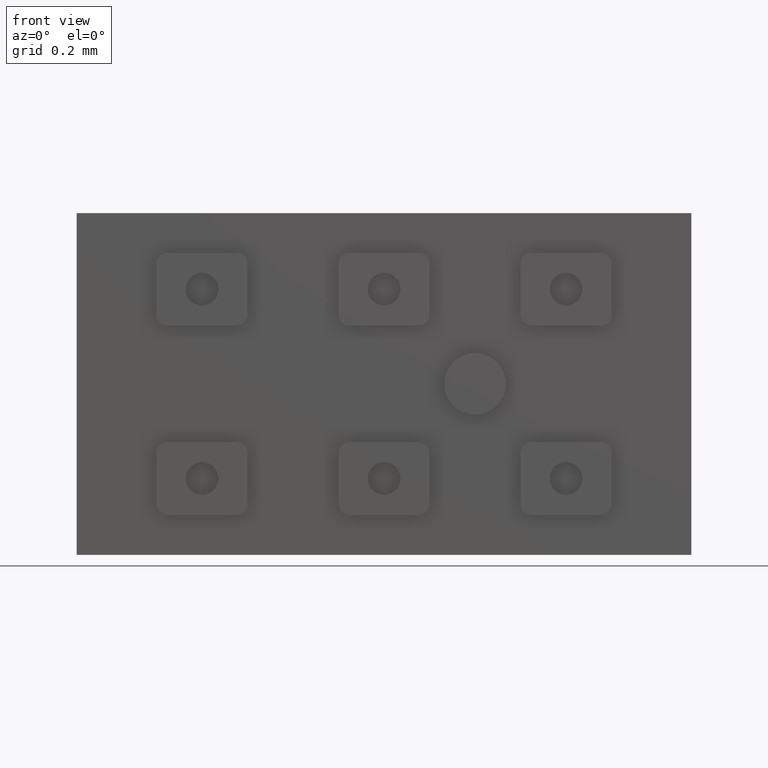
[diagram: clean part render]
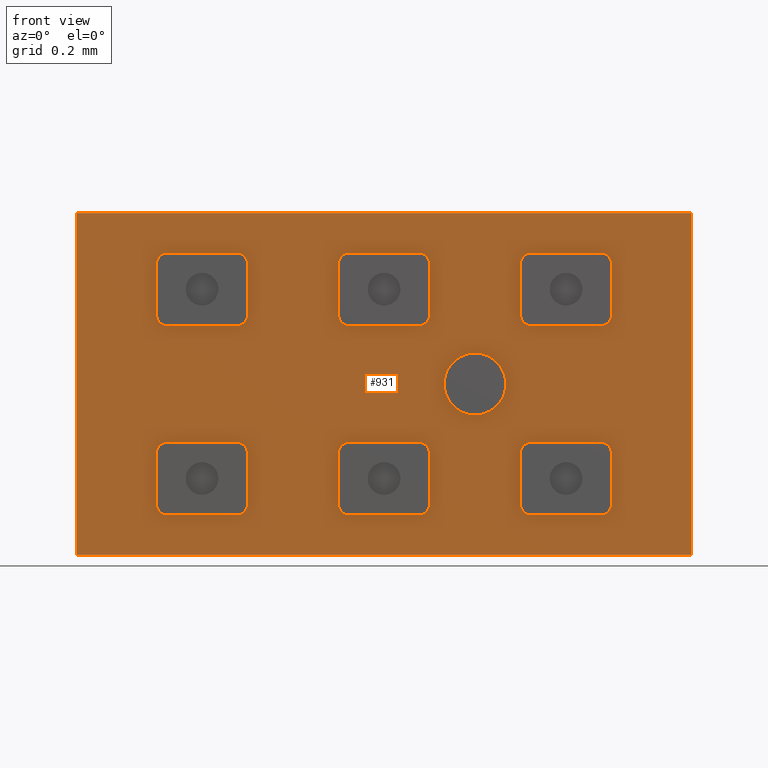
[diagram: same view with one face highlighted and labeled with its STEP entity id]
A machine part, front view. The second image highlights one B-rep face of the part: STEP entity #931.
In plain terms, the highlighted planar face has unit normal (0, 1, 0).
Its self-contained STEP definition (entity closure, byte-faithful):
#1 = LINE ( 'NONE', #1627, #585 ) ;
#18 = ORIENTED_EDGE ( 'NONE', *, *, #1862, .F. ) ;
#19 = ORIENTED_EDGE ( 'NONE', *, *, #986, .T. ) ;
#24 = FACE_BOUND ( 'NONE', #819, .T. ) ;
#26 = DIRECTION ( 'NONE',  ( 1.000000000000000000, 0.000000000000000000, 0.000000000000000000 ) ) ;
#31 = VERTEX_POINT ( 'NONE', #1773 ) ;
#37 = DIRECTION ( 'NONE',  ( 0.000000000000000000, -0.000000000000000000, 1.000000000000000000 ) ) ;
#38 = CIRCLE ( 'NONE', #1903, 0.02999999999999997113 ) ;
#41 = EDGE_CURVE ( 'NONE', #1216, #1025, #293, .T. ) ;
#42 = DIRECTION ( 'NONE',  ( -1.000000000000000000, -0.000000000000000000, -0.000000000000000000 ) ) ;
#49 = CARTESIAN_POINT ( 'NONE',  ( -0.09500000000000002887, -0.2550000000000000044, -0.1599999999999965061 ) ) ;
#57 = LINE ( 'NONE', #2446, #1536 ) ;
#61 = CARTESIAN_POINT ( 'NONE',  ( 0.6250000000000001110, -0.2550000000000000044, 0.3300000000000001266 ) ) ;
#63 = DIRECTION ( 'NONE',  ( -0.000000000000000000, -0.000000000000000000, -1.000000000000000000 ) ) ;
#79 = DIRECTION ( 'NONE',  ( 0.000000000000000000, 1.000000000000000000, -0.000000000000000000 ) ) ;
#80 = DIRECTION ( 'NONE',  ( 0.000000000000000000, 0.000000000000000000, 1.000000000000000000 ) ) ;
#87 = CARTESIAN_POINT ( 'NONE',  ( 0.1250000000000000555, -0.2550000000000000044, 0.1900000000000035272 ) ) ;
#89 = VECTOR ( 'NONE', #1316, 1000.000000000000000 ) ;
#104 = DIRECTION ( 'NONE',  ( 0.000000000000000000, 0.000000000000000000, 1.000000000000000000 ) ) ;
#130 = EDGE_CURVE ( 'NONE', #1229, #31, #57, .T. ) ;
#139 = VERTEX_POINT ( 'NONE', #878 ) ;
#142 = CARTESIAN_POINT ( 'NONE',  ( -0.1250000000000000000, -0.2550000000000000044, 0.1900000000000035272 ) ) ;
#151 = AXIS2_PLACEMENT_3D ( 'NONE', #1408, #2207, #37 ) ;
#156 = EDGE_CURVE ( 'NONE', #2218, #1802, #1869, .T. ) ;
#168 = CIRCLE ( 'NONE', #1798, 0.03000000000000002318 ) ;
#175 = VERTEX_POINT ( 'NONE', #2434 ) ;
#176 = CARTESIAN_POINT ( 'NONE',  ( 0.1250000000000000555, -0.2550000000000000044, -0.3299999999999965183 ) ) ;
#183 = LINE ( 'NONE', #589, #447 ) ;
#184 = DIRECTION ( 'NONE',  ( 0.000000000000000000, 0.000000000000000000, -1.000000000000000000 ) ) ;
#201 = LINE ( 'NONE', #800, #870 ) ;
#204 = VECTOR ( 'NONE', #1933, 1000.000000000000000 ) ;
#205 = ORIENTED_EDGE ( 'NONE', *, *, #1050, .T. ) ;
#226 = DIRECTION ( 'NONE',  ( 0.000000000000000000, 1.000000000000000000, -0.000000000000000000 ) ) ;
#230 = VERTEX_POINT ( 'NONE', #306 ) ;
#235 = FACE_BOUND ( 'NONE', #786, .T. ) ;
#237 = CIRCLE ( 'NONE', #696, 0.03000000000000002318 ) ;
#238 = LINE ( 'NONE', #2402, #1251 ) ;
#243 = AXIS2_PLACEMENT_3D ( 'NONE', #517, #2110, #1711 ) ;
#249 = EDGE_CURVE ( 'NONE', #1588, #1157, #168, .T. ) ;
#250 = DIRECTION ( 'NONE',  ( 0.000000000000000000, 0.000000000000000000, 1.000000000000000000 ) ) ;
#257 = ORIENTED_EDGE ( 'NONE', *, *, #286, .F. ) ;
#260 = EDGE_CURVE ( 'NONE', #869, #1252, #2201, .T. ) ;
#263 = CARTESIAN_POINT ( 'NONE',  ( 0.6250000000000001110, -0.2550000000000000044, 0.1900000000000000577 ) ) ;
#266 = CARTESIAN_POINT ( 'NONE',  ( -0.09500000000000002887, -0.2550000000000000044, 0.3300000000000035683 ) ) ;
#271 = VECTOR ( 'NONE', #26, 1000.000000000000000 ) ;
#273 = EDGE_CURVE ( 'NONE', #1802, #1344, #1917, .T. ) ;
#280 = VECTOR ( 'NONE', #2492, 1000.000000000000000 ) ;
#281 = ORIENTED_EDGE ( 'NONE', *, *, #1914, .T. ) ;
#283 = EDGE_CURVE ( 'NONE', #2017, #2034, #522, .T. ) ;
#285 = VECTOR ( 'NONE', #863, 1000.000000000000000 ) ;
#286 = EDGE_CURVE ( 'NONE', #1785, #1739, #2118, .T. ) ;
#293 = CIRCLE ( 'NONE', #2459, 0.02999999999999997113 ) ;
#296 = ORIENTED_EDGE ( 'NONE', *, *, #2220, .F. ) ;
#297 = LINE ( 'NONE', #681, #2236 ) ;
#300 = EDGE_CURVE ( 'NONE', #2081, #735, #1926, .T. ) ;
#304 = EDGE_LOOP ( 'NONE', ( #2394, #1938, #1819, #1497, #1968, #1636, #205, #2556 ) ) ;
#305 = CARTESIAN_POINT ( 'NONE',  ( 0.4049999999999999711, -0.2550000000000000044, 0.3600000000000000977 ) ) ;
#306 = CARTESIAN_POINT ( 'NONE',  ( -0.6250000000000000000, -0.2550000000000000044, -0.3299999999999930766 ) ) ;
#312 = DIRECTION ( 'NONE',  ( 0.000000000000000000, 1.000000000000000000, -0.000000000000000000 ) ) ;
#318 = AXIS2_PLACEMENT_3D ( 'NONE', #1329, #1537, #2333 ) ;
#321 = CARTESIAN_POINT ( 'NONE',  ( 0.5950000000000000844, -0.2550000000000000044, 0.1900000000000000577 ) ) ;
#337 = CARTESIAN_POINT ( 'NONE',  ( 0.4049999999999999711, -0.2550000000000000044, 0.3600000000000000977 ) ) ;
#343 = ORIENTED_EDGE ( 'NONE', *, *, #909, .T. ) ;
#349 = DIRECTION ( 'NONE',  ( -1.000000000000000000, -0.000000000000000000, -0.000000000000000000 ) ) ;
#353 = DIRECTION ( 'NONE',  ( 1.000000000000000000, 0.000000000000000000, 0.000000000000000000 ) ) ;
#358 = VECTOR ( 'NONE', #458, 1000.000000000000000 ) ;
#362 = EDGE_CURVE ( 'NONE', #2050, #572, #997, .T. ) ;
#410 = AXIS2_PLACEMENT_3D ( 'NONE', #1163, #1548, #1948 ) ;
#422 = VECTOR ( 'NONE', #104, 1000.000000000000000 ) ;
#423 = DIRECTION ( 'NONE',  ( -0.000000000000000000, -1.000000000000000000, -0.000000000000000000 ) ) ;
#433 = DIRECTION ( 'NONE',  ( 0.000000000000000000, 0.000000000000000000, 1.000000000000000000 ) ) ;
#447 = VECTOR ( 'NONE', #1377, 1000.000000000000000 ) ;
#448 = CARTESIAN_POINT ( 'NONE',  ( 0.2500000000000000000, -0.2550000000000000044, 0.000000000000000000 ) ) ;
#457 = ORIENTED_EDGE ( 'NONE', *, *, #555, .T. ) ;
#458 = DIRECTION ( 'NONE',  ( -0.000000000000000000, -0.000000000000000000, 1.000000000000000000 ) ) ;
#465 = CARTESIAN_POINT ( 'NONE',  ( 0.8445000000000000284, -0.2550000000000000044, -0.4695000000000002505 ) ) ;
#467 = DIRECTION ( 'NONE',  ( 0.000000000000000000, 0.000000000000000000, 1.000000000000000000 ) ) ;
#468 = EDGE_CURVE ( 'NONE', #570, #1049, #238, .T. ) ;
#474 = LINE ( 'NONE', #706, #1749 ) ;
#480 = EDGE_CURVE ( 'NONE', #2563, #1216, #1, .T. ) ;
#492 = VERTEX_POINT ( 'NONE', #2373 ) ;
#496 = CARTESIAN_POINT ( 'NONE',  ( -0.5950000000000000844, -0.2550000000000000044, 0.3600000000000070921 ) ) ;
#501 = CARTESIAN_POINT ( 'NONE',  ( 0.2500000000000000000, -0.2550000000000000044, -0.08500000000000003386 ) ) ;
#508 = DIRECTION ( 'NONE',  ( -0.000000000000000000, -0.000000000000000000, -1.000000000000000000 ) ) ;
#512 = EDGE_LOOP ( 'NONE', ( #1131, #1797, #19, #763, #1064, #343, #1188, #1210 ) ) ;
#513 = ORIENTED_EDGE ( 'NONE', *, *, #283, .T. ) ;
#517 = CARTESIAN_POINT ( 'NONE',  ( 0.5950000000000000844, -0.2550000000000000044, -0.1899999999999999467 ) ) ;
#518 = CARTESIAN_POINT ( 'NONE',  ( -0.09500000000000002887, -0.2550000000000000044, 0.3600000000000035394 ) ) ;
#521 = LINE ( 'NONE', #1832, #358 ) ;
#522 = LINE ( 'NONE', #1154, #89 ) ;
#527 = CIRCLE ( 'NONE', #1158, 0.02999999999999997113 ) ;
#533 = CARTESIAN_POINT ( 'NONE',  ( -0.4049999999999999711, -0.2550000000000000044, -0.3599999999999930478 ) ) ;
#536 = EDGE_CURVE ( 'NONE', #2034, #230, #2121, .T. ) ;
#542 = ORIENTED_EDGE ( 'NONE', *, *, #2058, .T. ) ;
#543 = EDGE_CURVE ( 'NONE', #653, #570, #1165, .T. ) ;
#555 = EDGE_CURVE ( 'NONE', #230, #492, #201, .T. ) ;
#569 = EDGE_CURVE ( 'NONE', #175, #1955, #474, .T. ) ;
#570 = VERTEX_POINT ( 'NONE', #1302 ) ;
#572 = VERTEX_POINT ( 'NONE', #1476 ) ;
#573 = CIRCLE ( 'NONE', #2449, 0.03000000000000002318 ) ;
#574 = DIRECTION ( 'NONE',  ( 0.000000000000000000, 0.000000000000000000, 1.000000000000000000 ) ) ;
#579 = CIRCLE ( 'NONE', #948, 0.03000000000000002318 ) ;
#585 = VECTOR ( 'NONE', #1581, 1000.000000000000000 ) ;
#588 = CARTESIAN_POINT ( 'NONE',  ( -0.5950000000000000844, -0.2550000000000000044, 0.3600000000000070921 ) ) ;
#589 = CARTESIAN_POINT ( 'NONE',  ( -0.1250000000000000000, -0.2550000000000000044, -0.3299999999999965183 ) ) ;
#593 = CARTESIAN_POINT ( 'NONE',  ( -0.4049999999999999711, -0.2550000000000000044, 0.1900000000000070521 ) ) ;
#595 = CARTESIAN_POINT ( 'NONE',  ( 0.5950000000000000844, -0.2550000000000000044, -0.3300000000000000155 ) ) ;
#600 = CARTESIAN_POINT ( 'NONE',  ( -0.1250000000000000000, -0.2550000000000000044, -0.3299999999999965183 ) ) ;
#602 = FACE_BOUND ( 'NONE', #2298, .T. ) ;
#616 = ORIENTED_EDGE ( 'NONE', *, *, #273, .T. ) ;
#617 = AXIS2_PLACEMENT_3D ( 'NONE', #1017, #2428, #2180 ) ;
#619 = PLANE ( 'NONE',  #151 ) ;
#623 = CARTESIAN_POINT ( 'NONE',  ( -0.09500000000000002887, -0.2550000000000000044, 0.1900000000000035272 ) ) ;
#624 = EDGE_CURVE ( 'NONE', #1252, #175, #2528, .T. ) ;
#633 = CARTESIAN_POINT ( 'NONE',  ( -0.1250000000000000000, -0.2550000000000000044, 0.1900000000000035272 ) ) ;
#639 = VERTEX_POINT ( 'NONE', #2097 ) ;
#644 = FACE_BOUND ( 'NONE', #304, .T. ) ;
#653 = VERTEX_POINT ( 'NONE', #1652 ) ;
#657 = EDGE_CURVE ( 'NONE', #1759, #2516, #1666, .T. ) ;
#665 = DIRECTION ( 'NONE',  ( 0.000000000000000000, 0.000000000000000000, 1.000000000000000000 ) ) ;
#666 = AXIS2_PLACEMENT_3D ( 'NONE', #448, #1242, #1052 ) ;
#670 = VECTOR ( 'NONE', #1129, 1000.000000000000000 ) ;
#671 = CARTESIAN_POINT ( 'NONE',  ( -0.1250000000000000000, -0.2550000000000000044, -0.1899999999999964773 ) ) ;
#681 = CARTESIAN_POINT ( 'NONE',  ( 0.1250000000000001110, -0.2550000000000000044, 0.1900000000000035272 ) ) ;
#685 = CARTESIAN_POINT ( 'NONE',  ( 0.4049999999999999711, -0.2550000000000000044, -0.3599999999999999867 ) ) ;
#689 = ORIENTED_EDGE ( 'NONE', *, *, #362, .T. ) ;
#693 = AXIS2_PLACEMENT_3D ( 'NONE', #2221, #423, #823 ) ;
#696 = AXIS2_PLACEMENT_3D ( 'NONE', #2092, #312, #2286 ) ;
#704 = CARTESIAN_POINT ( 'NONE',  ( 0.5950000000000000844, -0.2550000000000000044, 0.1600000000000000866 ) ) ;
#706 = CARTESIAN_POINT ( 'NONE',  ( -0.3749999999999998890, -0.2550000000000000044, -0.3299999999999930766 ) ) ;
#712 = EDGE_CURVE ( 'NONE', #2271, #2081, #579, .T. ) ;
#715 = DIRECTION ( 'NONE',  ( 0.000000000000000000, 0.000000000000000000, 1.000000000000000000 ) ) ;
#718 = CARTESIAN_POINT ( 'NONE',  ( 0.6250000000000001110, -0.2550000000000000044, 0.1900000000000000577 ) ) ;
#730 = CARTESIAN_POINT ( 'NONE',  ( -0.3749999999999998890, -0.2550000000000000044, 0.3300000000000071210 ) ) ;
#735 = VERTEX_POINT ( 'NONE', #767 ) ;
#736 = EDGE_CURVE ( 'NONE', #2264, #639, #2116, .T. ) ;
#740 = CARTESIAN_POINT ( 'NONE',  ( -0.6250000000000000000, -0.2550000000000000044, 0.3300000000000071210 ) ) ;
#741 = CARTESIAN_POINT ( 'NONE',  ( -0.5950000000000000844, -0.2550000000000000044, -0.1599999999999930367 ) ) ;
#747 = CARTESIAN_POINT ( 'NONE',  ( 0.8445000000000000284, -0.2550000000000000044, 0.4694999999999998064 ) ) ;
#763 = ORIENTED_EDGE ( 'NONE', *, *, #953, .T. ) ;
#767 = CARTESIAN_POINT ( 'NONE',  ( -0.09500000000000002887, -0.2550000000000000044, 0.1600000000000035560 ) ) ;
#768 = DIRECTION ( 'NONE',  ( 0.000000000000000000, 1.000000000000000000, -0.000000000000000000 ) ) ;
#781 = EDGE_CURVE ( 'NONE', #1420, #139, #1162, .T. ) ;
#782 = CIRCLE ( 'NONE', #410, 0.03000000000000002318 ) ;
#786 = EDGE_LOOP ( 'NONE', ( #296, #2008 ) ) ;
#790 = DIRECTION ( 'NONE',  ( 0.000000000000000000, 1.000000000000000000, 0.000000000000000000 ) ) ;
#792 = ORIENTED_EDGE ( 'NONE', *, *, #468, .T. ) ;
#800 = CARTESIAN_POINT ( 'NONE',  ( -0.6250000000000000000, -0.2550000000000000044, -0.3299999999999930766 ) ) ;
#819 = EDGE_LOOP ( 'NONE', ( #2490, #2376, #1002, #2406, #1338, #1368, #942, #2547 ) ) ;
#823 = DIRECTION ( 'NONE',  ( 0.000000000000000000, 0.000000000000000000, 1.000000000000000000 ) ) ;
#826 = CIRCLE ( 'NONE', #989, 0.02999999999999997113 ) ;
#831 = AXIS2_PLACEMENT_3D ( 'NONE', #2042, #1437, #250 ) ;
#837 = DIRECTION ( 'NONE',  ( 1.000000000000000000, 0.000000000000000000, 0.000000000000000000 ) ) ;
#845 = CARTESIAN_POINT ( 'NONE',  ( -0.09500000000000002887, -0.2550000000000000044, -0.3599999999999964895 ) ) ;
#847 = DIRECTION ( 'NONE',  ( 0.000000000000000000, 1.000000000000000000, 0.000000000000000000 ) ) ;
#850 = CARTESIAN_POINT ( 'NONE',  ( 0.8445000000000000284, -0.2550000000000000044, 0.4694999999999998064 ) ) ;
#863 = DIRECTION ( 'NONE',  ( -1.000000000000000000, 0.000000000000000000, 1.925758743313506929E-16 ) ) ;
#864 = CARTESIAN_POINT ( 'NONE',  ( 0.4049999999999999711, -0.2550000000000000044, -0.1599999999999999756 ) ) ;
#868 = AXIS2_PLACEMENT_3D ( 'NONE', #1896, #79, #2293 ) ;
#869 = VERTEX_POINT ( 'NONE', #741 ) ;
#870 = VECTOR ( 'NONE', #1596, 1000.000000000000000 ) ;
#878 = CARTESIAN_POINT ( 'NONE',  ( 0.5950000000000000844, -0.2550000000000000044, 0.3600000000000001532 ) ) ;
#905 = CARTESIAN_POINT ( 'NONE',  ( 0.09500000000000002887, -0.2550000000000000044, 0.1900000000000035272 ) ) ;
#907 = DIRECTION ( 'NONE',  ( -1.000000000000000000, -0.000000000000000000, -0.000000000000000000 ) ) ;
#909 = EDGE_CURVE ( 'NONE', #1630, #1817, #2197, .T. ) ;
#914 = VERTEX_POINT ( 'NONE', #633 ) ;
#918 = EDGE_CURVE ( 'NONE', #1919, #1229, #1276, .T. ) ;
#924 = DIRECTION ( 'NONE',  ( 0.000000000000000000, 0.000000000000000000, 1.000000000000000000 ) ) ;
#926 = ORIENTED_EDGE ( 'NONE', *, *, #624, .T. ) ;
#931 = ADVANCED_FACE ( 'NONE', ( #1972, #602, #1391, #1203, #644, #24, #235, #2398 ), #619, .F. ) ;
#934 = CARTESIAN_POINT ( 'NONE',  ( 0.6250000000000001110, -0.2550000000000000044, -0.3300000000000000155 ) ) ;
#935 = EDGE_CURVE ( 'NONE', #1829, #2276, #2070, .T. ) ;
#940 = CARTESIAN_POINT ( 'NONE',  ( 0.4049999999999999711, -0.2550000000000000044, -0.1899999999999999467 ) ) ;
#942 = ORIENTED_EDGE ( 'NONE', *, *, #2302, .T. ) ;
#946 = ORIENTED_EDGE ( 'NONE', *, *, #1398, .F. ) ;
#948 = AXIS2_PLACEMENT_3D ( 'NONE', #905, #1750, #574 ) ;
#952 = DIRECTION ( 'NONE',  ( -0.000000000000000000, -0.000000000000000000, -1.000000000000000000 ) ) ;
#953 = EDGE_CURVE ( 'NONE', #1045, #1545, #1076, .T. ) ;
#964 = LINE ( 'NONE', #1137, #1037 ) ;
#974 = VECTOR ( 'NONE', #952, 1000.000000000000000 ) ;
#986 = EDGE_CURVE ( 'NONE', #1336, #1045, #183, .T. ) ;
#989 = AXIS2_PLACEMENT_3D ( 'NONE', #2567, #1560, #2523 ) ;
#992 = LINE ( 'NONE', #2400, #271 ) ;
#993 = CIRCLE ( 'NONE', #2450, 0.02999999999999997113 ) ;
#997 = CIRCLE ( 'NONE', #2418, 0.03000000000000002318 ) ;
#999 = ORIENTED_EDGE ( 'NONE', *, *, #1273, .T. ) ;
#1001 = EDGE_LOOP ( 'NONE', ( #946, #2502, #18, #257 ) ) ;
#1002 = ORIENTED_EDGE ( 'NONE', *, *, #130, .T. ) ;
#1017 = CARTESIAN_POINT ( 'NONE',  ( 0.4049999999999999711, -0.2550000000000000044, 0.1900000000000000577 ) ) ;
#1025 = VERTEX_POINT ( 'NONE', #496 ) ;
#1037 = VECTOR ( 'NONE', #349, 1000.000000000000000 ) ;
#1043 = ORIENTED_EDGE ( 'NONE', *, *, #2455, .T. ) ;
#1045 = VERTEX_POINT ( 'NONE', #671 ) ;
#1049 = VERTEX_POINT ( 'NONE', #2470 ) ;
#1050 = EDGE_CURVE ( 'NONE', #1262, #2271, #297, .T. ) ;
#1052 = DIRECTION ( 'NONE',  ( 0.000000000000000000, 0.000000000000000000, 1.000000000000000000 ) ) ;
#1064 = ORIENTED_EDGE ( 'NONE', *, *, #2559, .T. ) ;
#1072 = AXIS2_PLACEMENT_3D ( 'NONE', #623, #2016, #2444 ) ;
#1076 = CIRCLE ( 'NONE', #1483, 0.02999999999999997113 ) ;
#1086 = VECTOR ( 'NONE', #353, 1000.000000000000000 ) ;
#1090 = DIRECTION ( 'NONE',  ( -0.000000000000000000, -0.000000000000000000, -1.000000000000000000 ) ) ;
#1100 = EDGE_CURVE ( 'NONE', #1464, #1336, #38, .T. ) ;
#1102 = DIRECTION ( 'NONE',  ( 0.000000000000000000, 1.000000000000000000, 0.000000000000000000 ) ) ;
#1104 = EDGE_CURVE ( 'NONE', #1817, #1588, #1662, .T. ) ;
#1112 = LINE ( 'NONE', #1909, #974 ) ;
#1115 = CARTESIAN_POINT ( 'NONE',  ( -0.09500000000000002887, -0.2550000000000000044, -0.3599999999999964895 ) ) ;
#1120 = EDGE_CURVE ( 'NONE', #914, #1716, #1325, .T. ) ;
#1129 = DIRECTION ( 'NONE',  ( -1.000000000000000000, -0.000000000000000000, -0.000000000000000000 ) ) ;
#1131 = ORIENTED_EDGE ( 'NONE', *, *, #1525, .T. ) ;
#1137 = CARTESIAN_POINT ( 'NONE',  ( 0.4049999999999999711, -0.2550000000000000044, 0.1600000000000000866 ) ) ;
#1154 = CARTESIAN_POINT ( 'NONE',  ( -0.5950000000000000844, -0.2550000000000000044, -0.3599999999999930478 ) ) ;
#1157 = VERTEX_POINT ( 'NONE', #1506 ) ;
#1158 = AXIS2_PLACEMENT_3D ( 'NONE', #1837, #1984, #2416 ) ;
#1162 = LINE ( 'NONE', #337, #204 ) ;
#1163 = CARTESIAN_POINT ( 'NONE',  ( -0.4049999999999999711, -0.2550000000000000044, -0.3299999999999930766 ) ) ;
#1164 = DIRECTION ( 'NONE',  ( 0.000000000000000000, 0.000000000000000000, 1.000000000000000000 ) ) ;
#1165 = CIRCLE ( 'NONE', #2001, 0.03000000000000002318 ) ;
#1188 = ORIENTED_EDGE ( 'NONE', *, *, #1104, .T. ) ;
#1193 = DIRECTION ( 'NONE',  ( 0.000000000000000000, 0.000000000000000000, 1.000000000000000000 ) ) ;
#1203 = FACE_BOUND ( 'NONE', #2326, .T. ) ;
#1210 = ORIENTED_EDGE ( 'NONE', *, *, #249, .T. ) ;
#1216 = VERTEX_POINT ( 'NONE', #740 ) ;
#1223 = CARTESIAN_POINT ( 'NONE',  ( 0.3750000000000000000, -0.2550000000000000044, -0.1899999999999999467 ) ) ;
#1227 = VERTEX_POINT ( 'NONE', #704 ) ;
#1229 = VERTEX_POINT ( 'NONE', #1309 ) ;
#1233 = CARTESIAN_POINT ( 'NONE',  ( 0.3750000000000000000, -0.2550000000000000044, -0.3300000000000000155 ) ) ;
#1242 = DIRECTION ( 'NONE',  ( -0.000000000000000000, -1.000000000000000000, -0.000000000000000000 ) ) ;
#1251 = VECTOR ( 'NONE', #42, 1000.000000000000000 ) ;
#1252 = VERTEX_POINT ( 'NONE', #1557 ) ;
#1261 = DIRECTION ( 'NONE',  ( 0.000000000000000000, 1.000000000000000000, 0.000000000000000000 ) ) ;
#1262 = VERTEX_POINT ( 'NONE', #1419 ) ;
#1263 = ORIENTED_EDGE ( 'NONE', *, *, #543, .T. ) ;
#1273 = EDGE_CURVE ( 'NONE', #1025, #2157, #2381, .T. ) ;
#1276 = CIRCLE ( 'NONE', #617, 0.02999999999999997113 ) ;
#1302 = CARTESIAN_POINT ( 'NONE',  ( -0.4049999999999999711, -0.2550000000000000044, 0.1600000000000070810 ) ) ;
#1306 = AXIS2_PLACEMENT_3D ( 'NONE', #1423, #1393, #2223 ) ;
#1309 = CARTESIAN_POINT ( 'NONE',  ( 0.3750000000000000000, -0.2550000000000000044, 0.1900000000000000577 ) ) ;
#1316 = DIRECTION ( 'NONE',  ( -1.000000000000000000, -0.000000000000000000, -0.000000000000000000 ) ) ;
#1319 = VECTOR ( 'NONE', #907, 1000.000000000000000 ) ;
#1325 = LINE ( 'NONE', #142, #280 ) ;
#1329 = CARTESIAN_POINT ( 'NONE',  ( 0.4049999999999999711, -0.2550000000000000044, -0.3300000000000000155 ) ) ;
#1336 = VERTEX_POINT ( 'NONE', #600 ) ;
#1338 = ORIENTED_EDGE ( 'NONE', *, *, #781, .T. ) ;
#1342 = CARTESIAN_POINT ( 'NONE',  ( 0.4049999999999999711, -0.2550000000000000044, -0.3599999999999999867 ) ) ;
#1344 = VERTEX_POINT ( 'NONE', #2395 ) ;
#1368 = ORIENTED_EDGE ( 'NONE', *, *, #2527, .T. ) ;
#1377 = DIRECTION ( 'NONE',  ( 0.000000000000000000, 0.000000000000000000, 1.000000000000000000 ) ) ;
#1390 = CIRCLE ( 'NONE', #1306, 0.03000000000000002318 ) ;
#1391 = FACE_BOUND ( 'NONE', #512, .T. ) ;
#1393 = DIRECTION ( 'NONE',  ( 0.000000000000000000, 1.000000000000000000, -0.000000000000000000 ) ) ;
#1398 = EDGE_CURVE ( 'NONE', #2516, #1785, #521, .T. ) ;
#1408 = CARTESIAN_POINT ( 'NONE',  ( 0.000000000000000000, -0.2550000000000000044, 0.000000000000000000 ) ) ;
#1418 = ORIENTED_EDGE ( 'NONE', *, *, #2026, .T. ) ;
#1419 = CARTESIAN_POINT ( 'NONE',  ( 0.1250000000000001110, -0.2550000000000000044, 0.3300000000000035683 ) ) ;
#1420 = VERTEX_POINT ( 'NONE', #305 ) ;
#1423 = CARTESIAN_POINT ( 'NONE',  ( 0.5950000000000000844, -0.2550000000000000044, 0.3300000000000001266 ) ) ;
#1437 = DIRECTION ( 'NONE',  ( 0.000000000000000000, 1.000000000000000000, 0.000000000000000000 ) ) ;
#1450 = CARTESIAN_POINT ( 'NONE',  ( 0.1250000000000001110, -0.2550000000000000044, -0.3299999999999965183 ) ) ;
#1453 = CIRCLE ( 'NONE', #1665, 0.02999999999999997113 ) ;
#1464 = VERTEX_POINT ( 'NONE', #1115 ) ;
#1476 = CARTESIAN_POINT ( 'NONE',  ( 0.5950000000000000844, -0.2550000000000000044, -0.3599999999999999867 ) ) ;
#1483 = AXIS2_PLACEMENT_3D ( 'NONE', #1575, #2415, #433 ) ;
#1490 = LINE ( 'NONE', #685, #1319 ) ;
#1497 = ORIENTED_EDGE ( 'NONE', *, *, #1932, .T. ) ;
#1499 = DIRECTION ( 'NONE',  ( -0.000000000000000000, -0.000000000000000000, -1.000000000000000000 ) ) ;
#1501 = LINE ( 'NONE', #864, #2514 ) ;
#1506 = CARTESIAN_POINT ( 'NONE',  ( 0.09500000000000002887, -0.2550000000000000044, -0.3599999999999964895 ) ) ;
#1513 = CARTESIAN_POINT ( 'NONE',  ( 0.09500000000000002887, -0.2550000000000000044, -0.3299999999999965183 ) ) ;
#1515 = VERTEX_POINT ( 'NONE', #61 ) ;
#1522 = CARTESIAN_POINT ( 'NONE',  ( -0.3749999999999999445, -0.2550000000000000044, -0.3299999999999930766 ) ) ;
#1525 = EDGE_CURVE ( 'NONE', #1157, #1464, #2295, .T. ) ;
#1528 = VECTOR ( 'NONE', #508, 1000.000000000000000 ) ;
#1536 = VECTOR ( 'NONE', #665, 1000.000000000000000 ) ;
#1537 = DIRECTION ( 'NONE',  ( 0.000000000000000000, 1.000000000000000000, 0.000000000000000000 ) ) ;
#1539 = EDGE_CURVE ( 'NONE', #2157, #1989, #237, .T. ) ;
#1541 = DIRECTION ( 'NONE',  ( 1.000000000000000000, -0.000000000000000000, -1.283839162209004620E-16 ) ) ;
#1545 = VERTEX_POINT ( 'NONE', #49 ) ;
#1548 = DIRECTION ( 'NONE',  ( 0.000000000000000000, 1.000000000000000000, 0.000000000000000000 ) ) ;
#1557 = CARTESIAN_POINT ( 'NONE',  ( -0.4049999999999999711, -0.2550000000000000044, -0.1599999999999929812 ) ) ;
#1560 = DIRECTION ( 'NONE',  ( 0.000000000000000000, 1.000000000000000000, 0.000000000000000000 ) ) ;
#1561 = DIRECTION ( 'NONE',  ( 0.000000000000000000, 1.000000000000000000, 0.000000000000000000 ) ) ;
#1565 = VECTOR ( 'NONE', #1818, 1000.000000000000000 ) ;
#1570 = VECTOR ( 'NONE', #1890, 1000.000000000000000 ) ;
#1575 = CARTESIAN_POINT ( 'NONE',  ( -0.09500000000000002887, -0.2550000000000000044, -0.1899999999999964773 ) ) ;
#1576 = CARTESIAN_POINT ( 'NONE',  ( -0.4049999999999999711, -0.2550000000000000044, 0.3600000000000071476 ) ) ;
#1578 = VECTOR ( 'NONE', #1541, 1000.000000000000000 ) ;
#1581 = DIRECTION ( 'NONE',  ( 0.000000000000000000, 0.000000000000000000, 1.000000000000000000 ) ) ;
#1587 = ORIENTED_EDGE ( 'NONE', *, *, #480, .T. ) ;
#1588 = VERTEX_POINT ( 'NONE', #176 ) ;
#1590 = ORIENTED_EDGE ( 'NONE', *, *, #536, .T. ) ;
#1593 = CARTESIAN_POINT ( 'NONE',  ( -0.8445000000000000284, -0.2550000000000000044, -0.4694999999999999174 ) ) ;
#1596 = DIRECTION ( 'NONE',  ( 0.000000000000000000, 0.000000000000000000, 1.000000000000000000 ) ) ;
#1597 = CARTESIAN_POINT ( 'NONE',  ( -0.1250000000000000000, -0.2550000000000000044, 0.3300000000000035683 ) ) ;
#1599 = ORIENTED_EDGE ( 'NONE', *, *, #1849, .T. ) ;
#1623 = DIRECTION ( 'NONE',  ( 0.000000000000000000, 0.000000000000000000, -1.000000000000000000 ) ) ;
#1627 = CARTESIAN_POINT ( 'NONE',  ( -0.6250000000000000000, -0.2550000000000000044, 0.1900000000000070521 ) ) ;
#1630 = VERTEX_POINT ( 'NONE', #2335 ) ;
#1636 = ORIENTED_EDGE ( 'NONE', *, *, #2024, .T. ) ;
#1642 = VERTEX_POINT ( 'NONE', #1342 ) ;
#1644 = ORIENTED_EDGE ( 'NONE', *, *, #2389, .T. ) ;
#1650 = DIRECTION ( 'NONE',  ( 0.000000000000000000, 0.000000000000000000, 1.000000000000000000 ) ) ;
#1652 = CARTESIAN_POINT ( 'NONE',  ( -0.3749999999999999445, -0.2550000000000000044, 0.1900000000000070521 ) ) ;
#1662 = LINE ( 'NONE', #1450, #2475 ) ;
#1665 = AXIS2_PLACEMENT_3D ( 'NONE', #266, #1261, #80 ) ;
#1666 = LINE ( 'NONE', #465, #285 ) ;
#1671 = ORIENTED_EDGE ( 'NONE', *, *, #736, .T. ) ;
#1677 = CARTESIAN_POINT ( 'NONE',  ( 0.5950000000000000844, -0.2550000000000000044, -0.1599999999999999201 ) ) ;
#1694 = CARTESIAN_POINT ( 'NONE',  ( 0.3750000000000000000, -0.2550000000000000044, -0.3300000000000000155 ) ) ;
#1711 = DIRECTION ( 'NONE',  ( 0.000000000000000000, 0.000000000000000000, -1.000000000000000000 ) ) ;
#1715 = CARTESIAN_POINT ( 'NONE',  ( -0.5950000000000000844, -0.2550000000000000044, -0.1599999999999930367 ) ) ;
#1716 = VERTEX_POINT ( 'NONE', #1597 ) ;
#1717 = ORIENTED_EDGE ( 'NONE', *, *, #1539, .T. ) ;
#1729 = EDGE_LOOP ( 'NONE', ( #1997, #1963, #2466, #616, #1599, #1671, #1043, #689 ) ) ;
#1734 = ORIENTED_EDGE ( 'NONE', *, *, #41, .T. ) ;
#1739 = VERTEX_POINT ( 'NONE', #850 ) ;
#1742 = DIRECTION ( 'NONE',  ( 0.000000000000000000, 1.000000000000000000, 0.000000000000000000 ) ) ;
#1749 = VECTOR ( 'NONE', #1090, 1000.000000000000000 ) ;
#1750 = DIRECTION ( 'NONE',  ( 0.000000000000000000, 1.000000000000000000, 0.000000000000000000 ) ) ;
#1757 = EDGE_CURVE ( 'NONE', #735, #914, #2102, .T. ) ;
#1759 = VERTEX_POINT ( 'NONE', #2027 ) ;
#1762 = ORIENTED_EDGE ( 'NONE', *, *, #569, .T. ) ;
#1766 = CARTESIAN_POINT ( 'NONE',  ( -0.5950000000000000844, -0.2550000000000000044, -0.3599999999999930478 ) ) ;
#1773 = CARTESIAN_POINT ( 'NONE',  ( 0.3750000000000000000, -0.2550000000000000044, 0.3300000000000001266 ) ) ;
#1785 = VERTEX_POINT ( 'NONE', #2212 ) ;
#1797 = ORIENTED_EDGE ( 'NONE', *, *, #1100, .T. ) ;
#1798 = AXIS2_PLACEMENT_3D ( 'NONE', #1513, #1102, #924 ) ;
#1802 = VERTEX_POINT ( 'NONE', #1223 ) ;
#1811 = CARTESIAN_POINT ( 'NONE',  ( -0.6250000000000000000, -0.2550000000000000044, 0.1900000000000070521 ) ) ;
#1817 = VERTEX_POINT ( 'NONE', #2420 ) ;
#1818 = DIRECTION ( 'NONE',  ( 1.000000000000000000, 0.000000000000000000, 0.000000000000000000 ) ) ;
#1819 = ORIENTED_EDGE ( 'NONE', *, *, #1120, .T. ) ;
#1828 = VECTOR ( 'NONE', #2437, 1000.000000000000000 ) ;
#1829 = VERTEX_POINT ( 'NONE', #501 ) ;
#1832 = CARTESIAN_POINT ( 'NONE',  ( -0.8445000000000000284, -0.2550000000000000044, 0.4695000000000000284 ) ) ;
#1837 = CARTESIAN_POINT ( 'NONE',  ( 0.4049999999999999711, -0.2550000000000000044, 0.3300000000000001266 ) ) ;
#1849 = EDGE_CURVE ( 'NONE', #1344, #2264, #1501, .T. ) ;
#1862 = EDGE_CURVE ( 'NONE', #1739, #1759, #2261, .T. ) ;
#1869 = LINE ( 'NONE', #1694, #422 ) ;
#1877 = CIRCLE ( 'NONE', #318, 0.02999999999999997113 ) ;
#1887 = EDGE_CURVE ( 'NONE', #572, #1642, #1490, .T. ) ;
#1890 = DIRECTION ( 'NONE',  ( 0.000000000000000000, 0.000000000000000000, -1.000000000000000000 ) ) ;
#1896 = CARTESIAN_POINT ( 'NONE',  ( -0.4049999999999999711, -0.2550000000000000044, -0.1899999999999930078 ) ) ;
#1903 = AXIS2_PLACEMENT_3D ( 'NONE', #2232, #847, #1650 ) ;
#1909 = CARTESIAN_POINT ( 'NONE',  ( 0.6250000000000001110, -0.2550000000000000044, -0.3300000000000000155 ) ) ;
#1914 = EDGE_CURVE ( 'NONE', #1989, #653, #2269, .T. ) ;
#1917 = CIRCLE ( 'NONE', #2288, 0.02999999999999997113 ) ;
#1919 = VERTEX_POINT ( 'NONE', #2056 ) ;
#1926 = LINE ( 'NONE', #2488, #670 ) ;
#1932 = EDGE_CURVE ( 'NONE', #1716, #1942, #1453, .T. ) ;
#1933 = DIRECTION ( 'NONE',  ( 1.000000000000000000, 0.000000000000000000, 0.000000000000000000 ) ) ;
#1938 = ORIENTED_EDGE ( 'NONE', *, *, #1757, .T. ) ;
#1942 = VERTEX_POINT ( 'NONE', #518 ) ;
#1948 = DIRECTION ( 'NONE',  ( 0.000000000000000000, 0.000000000000000000, 1.000000000000000000 ) ) ;
#1955 = VERTEX_POINT ( 'NONE', #1522 ) ;
#1963 = ORIENTED_EDGE ( 'NONE', *, *, #2091, .T. ) ;
#1964 = EDGE_CURVE ( 'NONE', #1227, #1919, #964, .T. ) ;
#1968 = ORIENTED_EDGE ( 'NONE', *, *, #2546, .T. ) ;
#1972 = FACE_BOUND ( 'NONE', #1729, .T. ) ;
#1973 = CARTESIAN_POINT ( 'NONE',  ( 0.09500000000000002887, -0.2550000000000000044, 0.3300000000000035683 ) ) ;
#1984 = DIRECTION ( 'NONE',  ( 0.000000000000000000, 1.000000000000000000, 0.000000000000000000 ) ) ;
#1986 = AXIS2_PLACEMENT_3D ( 'NONE', #2011, #226, #1623 ) ;
#1989 = VERTEX_POINT ( 'NONE', #730 ) ;
#1997 = ORIENTED_EDGE ( 'NONE', *, *, #1887, .T. ) ;
#2001 = AXIS2_PLACEMENT_3D ( 'NONE', #593, #2182, #1193 ) ;
#2008 = ORIENTED_EDGE ( 'NONE', *, *, #935, .F. ) ;
#2011 = CARTESIAN_POINT ( 'NONE',  ( 0.09500000000000002887, -0.2550000000000000044, -0.1899999999999964773 ) ) ;
#2013 = LINE ( 'NONE', #2386, #2063 ) ;
#2016 = DIRECTION ( 'NONE',  ( 0.000000000000000000, 1.000000000000000000, 0.000000000000000000 ) ) ;
#2017 = VERTEX_POINT ( 'NONE', #533 ) ;
#2024 = EDGE_CURVE ( 'NONE', #2433, #1262, #573, .T. ) ;
#2026 = EDGE_CURVE ( 'NONE', #1955, #2017, #782, .T. ) ;
#2027 = CARTESIAN_POINT ( 'NONE',  ( 0.8445000000000000284, -0.2550000000000000044, -0.4695000000000002505 ) ) ;
#2034 = VERTEX_POINT ( 'NONE', #1766 ) ;
#2038 = AXIS2_PLACEMENT_3D ( 'NONE', #321, #2493, #715 ) ;
#2042 = CARTESIAN_POINT ( 'NONE',  ( -0.5950000000000000844, -0.2550000000000000044, -0.3299999999999930766 ) ) ;
#2050 = VERTEX_POINT ( 'NONE', #934 ) ;
#2056 = CARTESIAN_POINT ( 'NONE',  ( 0.4049999999999999711, -0.2550000000000000044, 0.1600000000000000866 ) ) ;
#2058 = EDGE_CURVE ( 'NONE', #492, #869, #826, .T. ) ;
#2063 = VECTOR ( 'NONE', #837, 1000.000000000000000 ) ;
#2070 = CIRCLE ( 'NONE', #693, 0.08500000000000003386 ) ;
#2079 = DIRECTION ( 'NONE',  ( 1.000000000000000000, 0.000000000000000000, 0.000000000000000000 ) ) ;
#2081 = VERTEX_POINT ( 'NONE', #2509 ) ;
#2087 = LINE ( 'NONE', #263, #2244 ) ;
#2091 = EDGE_CURVE ( 'NONE', #1642, #2218, #1877, .T. ) ;
#2092 = CARTESIAN_POINT ( 'NONE',  ( -0.4049999999999999711, -0.2550000000000000044, 0.3300000000000071210 ) ) ;
#2097 = CARTESIAN_POINT ( 'NONE',  ( 0.6250000000000001110, -0.2550000000000000044, -0.1899999999999999467 ) ) ;
#2101 = DIRECTION ( 'NONE',  ( 0.000000000000000000, 0.000000000000000000, 1.000000000000000000 ) ) ;
#2102 = CIRCLE ( 'NONE', #1072, 0.02999999999999997113 ) ;
#2110 = DIRECTION ( 'NONE',  ( 0.000000000000000000, 1.000000000000000000, -0.000000000000000000 ) ) ;
#2112 = CARTESIAN_POINT ( 'NONE',  ( -0.5950000000000000844, -0.2550000000000000044, 0.1900000000000070521 ) ) ;
#2115 = CIRCLE ( 'NONE', #2038, 0.03000000000000002318 ) ;
#2116 = CIRCLE ( 'NONE', #243, 0.03000000000000002318 ) ;
#2118 = LINE ( 'NONE', #747, #1578 ) ;
#2121 = CIRCLE ( 'NONE', #831, 0.02999999999999997113 ) ;
#2136 = EDGE_CURVE ( 'NONE', #31, #1420, #527, .T. ) ;
#2157 = VERTEX_POINT ( 'NONE', #1576 ) ;
#2180 = DIRECTION ( 'NONE',  ( 0.000000000000000000, 0.000000000000000000, 1.000000000000000000 ) ) ;
#2182 = DIRECTION ( 'NONE',  ( 0.000000000000000000, 1.000000000000000000, 0.000000000000000000 ) ) ;
#2197 = CIRCLE ( 'NONE', #1986, 0.03000000000000002318 ) ;
#2201 = LINE ( 'NONE', #1715, #1086 ) ;
#2207 = DIRECTION ( 'NONE',  ( 0.000000000000000000, 1.000000000000000000, 0.000000000000000000 ) ) ;
#2212 = CARTESIAN_POINT ( 'NONE',  ( -0.8445000000000000284, -0.2550000000000000044, 0.4695000000000000284 ) ) ;
#2214 = CARTESIAN_POINT ( 'NONE',  ( -0.5950000000000000844, -0.2550000000000000044, 0.3300000000000071210 ) ) ;
#2218 = VERTEX_POINT ( 'NONE', #1233 ) ;
#2220 = EDGE_CURVE ( 'NONE', #2276, #1829, #2526, .T. ) ;
#2221 = CARTESIAN_POINT ( 'NONE',  ( 0.2500000000000000000, -0.2550000000000000044, 0.000000000000000000 ) ) ;
#2223 = DIRECTION ( 'NONE',  ( 0.000000000000000000, 0.000000000000000000, -1.000000000000000000 ) ) ;
#2232 = CARTESIAN_POINT ( 'NONE',  ( -0.09500000000000002887, -0.2550000000000000044, -0.3299999999999965183 ) ) ;
#2236 = VECTOR ( 'NONE', #63, 1000.000000000000000 ) ;
#2244 = VECTOR ( 'NONE', #1499, 1000.000000000000000 ) ;
#2256 = ORIENTED_EDGE ( 'NONE', *, *, #260, .T. ) ;
#2261 = LINE ( 'NONE', #2496, #1570 ) ;
#2264 = VERTEX_POINT ( 'NONE', #1677 ) ;
#2265 = DIRECTION ( 'NONE',  ( -0.000000000000000000, -0.000000000000000000, -1.000000000000000000 ) ) ;
#2269 = LINE ( 'NONE', #2473, #1528 ) ;
#2271 = VERTEX_POINT ( 'NONE', #87 ) ;
#2276 = VERTEX_POINT ( 'NONE', #2471 ) ;
#2286 = DIRECTION ( 'NONE',  ( 0.000000000000000000, 0.000000000000000000, -1.000000000000000000 ) ) ;
#2288 = AXIS2_PLACEMENT_3D ( 'NONE', #940, #1742, #2101 ) ;
#2293 = DIRECTION ( 'NONE',  ( 0.000000000000000000, 0.000000000000000000, -1.000000000000000000 ) ) ;
#2295 = LINE ( 'NONE', #845, #1828 ) ;
#2298 = EDGE_LOOP ( 'NONE', ( #513, #1590, #457, #542, #2256, #926, #1762, #1418 ) ) ;
#2302 = EDGE_CURVE ( 'NONE', #1515, #2422, #2087, .T. ) ;
#2318 = CARTESIAN_POINT ( 'NONE',  ( 0.09500000000000002887, -0.2550000000000000044, 0.3600000000000035949 ) ) ;
#2326 = EDGE_LOOP ( 'NONE', ( #792, #1644, #1587, #1734, #999, #1717, #281, #1263 ) ) ;
#2333 = DIRECTION ( 'NONE',  ( 0.000000000000000000, 0.000000000000000000, 1.000000000000000000 ) ) ;
#2335 = CARTESIAN_POINT ( 'NONE',  ( 0.09500000000000002887, -0.2550000000000000044, -0.1599999999999964506 ) ) ;
#2338 = EDGE_CURVE ( 'NONE', #2422, #1227, #2115, .T. ) ;
#2365 = DIRECTION ( 'NONE',  ( 0.000000000000000000, 1.000000000000000000, 0.000000000000000000 ) ) ;
#2373 = CARTESIAN_POINT ( 'NONE',  ( -0.6250000000000000000, -0.2550000000000000044, -0.1899999999999930078 ) ) ;
#2376 = ORIENTED_EDGE ( 'NONE', *, *, #918, .T. ) ;
#2381 = LINE ( 'NONE', #588, #1565 ) ;
#2386 = CARTESIAN_POINT ( 'NONE',  ( -0.09500000000000002887, -0.2550000000000000044, 0.3600000000000035394 ) ) ;
#2389 = EDGE_CURVE ( 'NONE', #1049, #2563, #993, .T. ) ;
#2394 = ORIENTED_EDGE ( 'NONE', *, *, #300, .T. ) ;
#2395 = CARTESIAN_POINT ( 'NONE',  ( 0.4049999999999999711, -0.2550000000000000044, -0.1599999999999999756 ) ) ;
#2398 = FACE_OUTER_BOUND ( 'NONE', #1001, .T. ) ;
#2400 = CARTESIAN_POINT ( 'NONE',  ( -0.09500000000000002887, -0.2550000000000000044, -0.1599999999999965061 ) ) ;
#2402 = CARTESIAN_POINT ( 'NONE',  ( -0.5950000000000000844, -0.2550000000000000044, 0.1600000000000070810 ) ) ;
#2406 = ORIENTED_EDGE ( 'NONE', *, *, #2136, .T. ) ;
#2415 = DIRECTION ( 'NONE',  ( 0.000000000000000000, 1.000000000000000000, 0.000000000000000000 ) ) ;
#2416 = DIRECTION ( 'NONE',  ( 0.000000000000000000, 0.000000000000000000, 1.000000000000000000 ) ) ;
#2418 = AXIS2_PLACEMENT_3D ( 'NONE', #595, #790, #2555 ) ;
#2420 = CARTESIAN_POINT ( 'NONE',  ( 0.1250000000000001110, -0.2550000000000000044, -0.1899999999999964773 ) ) ;
#2422 = VERTEX_POINT ( 'NONE', #718 ) ;
#2428 = DIRECTION ( 'NONE',  ( 0.000000000000000000, 1.000000000000000000, 0.000000000000000000 ) ) ;
#2433 = VERTEX_POINT ( 'NONE', #2318 ) ;
#2434 = CARTESIAN_POINT ( 'NONE',  ( -0.3749999999999998890, -0.2550000000000000044, -0.1899999999999930078 ) ) ;
#2437 = DIRECTION ( 'NONE',  ( -1.000000000000000000, -0.000000000000000000, -0.000000000000000000 ) ) ;
#2444 = DIRECTION ( 'NONE',  ( 0.000000000000000000, 0.000000000000000000, 1.000000000000000000 ) ) ;
#2446 = CARTESIAN_POINT ( 'NONE',  ( 0.3750000000000000000, -0.2550000000000000044, 0.1900000000000000577 ) ) ;
#2449 = AXIS2_PLACEMENT_3D ( 'NONE', #1973, #768, #184 ) ;
#2450 = AXIS2_PLACEMENT_3D ( 'NONE', #2112, #1561, #1164 ) ;
#2455 = EDGE_CURVE ( 'NONE', #639, #2050, #1112, .T. ) ;
#2459 = AXIS2_PLACEMENT_3D ( 'NONE', #2214, #2365, #467 ) ;
#2466 = ORIENTED_EDGE ( 'NONE', *, *, #156, .T. ) ;
#2470 = CARTESIAN_POINT ( 'NONE',  ( -0.5950000000000000844, -0.2550000000000000044, 0.1600000000000070810 ) ) ;
#2471 = CARTESIAN_POINT ( 'NONE',  ( 0.2500000000000000000, -0.2550000000000000044, 0.08500000000000003386 ) ) ;
#2473 = CARTESIAN_POINT ( 'NONE',  ( -0.3749999999999998890, -0.2550000000000000044, 0.1900000000000070521 ) ) ;
#2475 = VECTOR ( 'NONE', #2265, 1000.000000000000000 ) ;
#2488 = CARTESIAN_POINT ( 'NONE',  ( -0.09500000000000002887, -0.2550000000000000044, 0.1600000000000035560 ) ) ;
#2490 = ORIENTED_EDGE ( 'NONE', *, *, #1964, .T. ) ;
#2492 = DIRECTION ( 'NONE',  ( 0.000000000000000000, 0.000000000000000000, 1.000000000000000000 ) ) ;
#2493 = DIRECTION ( 'NONE',  ( 0.000000000000000000, 1.000000000000000000, 0.000000000000000000 ) ) ;
#2496 = CARTESIAN_POINT ( 'NONE',  ( 0.8445000000000000284, -0.2550000000000000044, 0.4694999999999998064 ) ) ;
#2502 = ORIENTED_EDGE ( 'NONE', *, *, #657, .F. ) ;
#2509 = CARTESIAN_POINT ( 'NONE',  ( 0.09500000000000002887, -0.2550000000000000044, 0.1600000000000035560 ) ) ;
#2514 = VECTOR ( 'NONE', #2079, 1000.000000000000000 ) ;
#2516 = VERTEX_POINT ( 'NONE', #1593 ) ;
#2523 = DIRECTION ( 'NONE',  ( 0.000000000000000000, 0.000000000000000000, 1.000000000000000000 ) ) ;
#2526 = CIRCLE ( 'NONE', #666, 0.08500000000000003386 ) ;
#2527 = EDGE_CURVE ( 'NONE', #139, #1515, #1390, .T. ) ;
#2528 = CIRCLE ( 'NONE', #868, 0.03000000000000002318 ) ;
#2546 = EDGE_CURVE ( 'NONE', #1942, #2433, #2013, .T. ) ;
#2547 = ORIENTED_EDGE ( 'NONE', *, *, #2338, .T. ) ;
#2555 = DIRECTION ( 'NONE',  ( 0.000000000000000000, 0.000000000000000000, 1.000000000000000000 ) ) ;
#2556 = ORIENTED_EDGE ( 'NONE', *, *, #712, .T. ) ;
#2559 = EDGE_CURVE ( 'NONE', #1545, #1630, #992, .T. ) ;
#2563 = VERTEX_POINT ( 'NONE', #1811 ) ;
#2567 = CARTESIAN_POINT ( 'NONE',  ( -0.5950000000000000844, -0.2550000000000000044, -0.1899999999999930078 ) ) ;